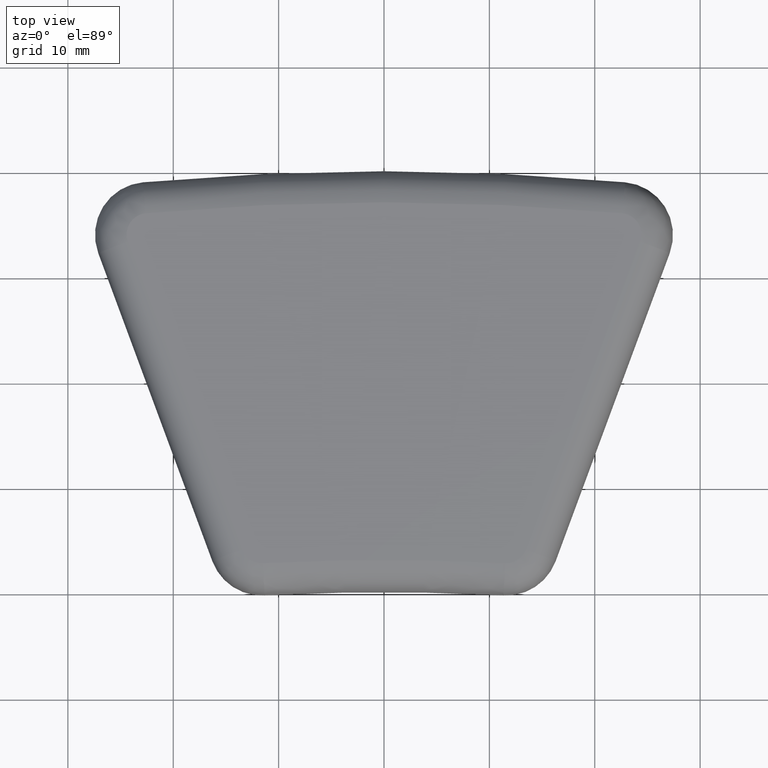
[diagram: clean part render]
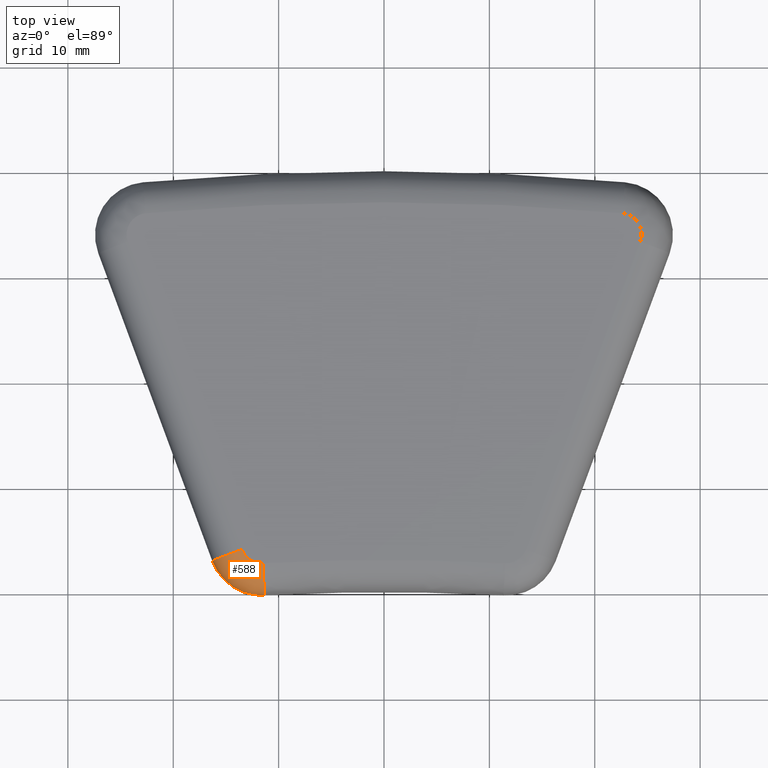
[diagram: same view with one face highlighted and labeled with its STEP entity id]
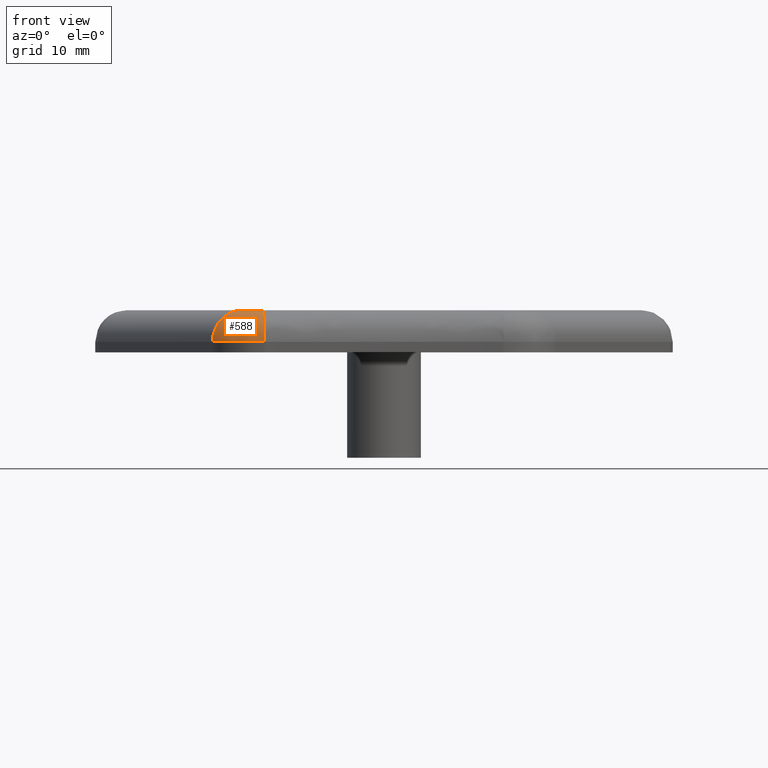
[diagram: same view with one face highlighted and labeled with its STEP entity id]
A machine part, top view. The second image highlights one B-rep face of the part: STEP entity #588.
A second angle (front view) of the same face is appended — the face is thin or edge-on in the first view.
In plain terms, the highlighted face is a freeform B-spline surface patch.
Its self-contained STEP definition (entity closure, byte-faithful):
#142=CARTESIAN_POINT('',(-13.477986189388506,-15.947281593540904,4.0));
#143=VERTEX_POINT('',#142);
#150=CARTESIAN_POINT('',(-11.494577919335303,-17.249770141834830,4.0));
#151=VERTEX_POINT('',#150);
#152=CARTESIAN_POINT('',(-11.602477570224877,-15.252682846462420,4.0));
#153=DIRECTION('',(0.0,0.0,-1.0));
#154=DIRECTION('',(0.053949825444788,-0.998543647686208,0.0));
#155=AXIS2_PLACEMENT_3D('',#152,#153,#154);
#156=CIRCLE('',#155,2.000000000000015);
#157=EDGE_CURVE('',#151,#143,#156,.T.);
#266=CARTESIAN_POINT('',(-16.291249118133926,-16.989179714158624,1.0));
#267=VERTEX_POINT('',#266);
#289=CARTESIAN_POINT('',(-11.332728443000917,-20.245401084893473,1.0));
#290=VERTEX_POINT('',#289);
#297=CARTESIAN_POINT('',(-11.602477570224877,-15.252682846462420,1.0));
#298=DIRECTION('',(0.0,0.0,-1.0));
#299=DIRECTION('',(0.053949825444788,-0.998543647686208,0.0));
#300=AXIS2_PLACEMENT_3D('',#297,#298,#299);
#301=CIRCLE('',#300,5.000000000000015);
#302=EDGE_CURVE('',#290,#267,#301,.T.);
#515=CARTESIAN_POINT('',(-11.494577919335306,-17.249770141834830,1.0));
#516=DIRECTION('',(-0.998543647686207,-0.053949825444795,0.0));
#517=DIRECTION('',(0.053949825444795,-0.998543647686207,0.0));
#518=AXIS2_PLACEMENT_3D('',#515,#516,#517);
#519=CIRCLE('',#518,3.000000000000021);
#520=EDGE_CURVE('',#290,#151,#519,.T.);
#526=CARTESIAN_POINT('',(-11.332728443000939,-20.245401084893473,1.0));
#527=CARTESIAN_POINT('',(-11.332728443000939,-20.245401084893473,1.390180644032256));
#528=CARTESIAN_POINT('',(-11.341150891664359,-20.089512116922148,2.179083452029824));
#529=CARTESIAN_POINT('',(-11.377170219487221,-19.422839505937457,3.176238734418842));
#530=CARTESIAN_POINT('',(-11.430966572913455,-18.427136432951166,3.843883671652662));
#531=CARTESIAN_POINT('',(-11.473527741697827,-17.639382545383373,4.0));
#532=CARTESIAN_POINT('',(-11.494577919335303,-17.249770141834851,4.0));
#533=CARTESIAN_POINT('',(-11.858941818837792,-20.273831609526919,1.0));
#534=CARTESIAN_POINT('',(-11.858941818837792,-20.273831609526919,1.390180644032256));
#535=CARTESIAN_POINT('',(-11.850934167468631,-20.117054947731830,2.179083452029824));
#536=CARTESIAN_POINT('',(-11.816688756035054,-19.446586037580264,3.176238734418841));
#537=CARTESIAN_POINT('',(-11.765541819985394,-18.445213035030104,3.843883671652662));
#538=CARTESIAN_POINT('',(-11.725076746809052,-17.652973363319084,4.000000000000000));
#539=CARTESIAN_POINT('',(-11.705063269670045,-17.261142351688225,4.0));
#540=CARTESIAN_POINT('',(-12.928058967340089,-20.161973362099733,1.0));
#541=CARTESIAN_POINT('',(-12.928058967340089,-20.161973362099733,1.390180644032256));
#542=CARTESIAN_POINT('',(-12.886669987211455,-20.008689280081395,2.179083452029826));
#543=CARTESIAN_POINT('',(-12.709666445476397,-19.353156688446354,3.176238734418840));
#544=CARTESIAN_POINT('',(-12.445304347002391,-18.374091694356338,3.843883671652662));
#545=CARTESIAN_POINT('',(-12.236153369719686,-17.599501079743924,4.000000000000000));
#546=CARTESIAN_POINT('',(-12.132710129070968,-17.216399052717364,4.0));
#547=CARTESIAN_POINT('',(-14.393379331441940,-19.502622426625805,1.000000000000000));
#548=CARTESIAN_POINT('',(-14.393379331441940,-19.502622426625805,1.390180644032256));
#549=CARTESIAN_POINT('',(-14.306238264294082,-19.369925434035174,2.179083452029826));
#550=CARTESIAN_POINT('',(-13.933571978055378,-18.802435305186027,3.176238734418841));
#551=CARTESIAN_POINT('',(-13.376979491290090,-17.954865364747224,3.843883671652663));
#552=CARTESIAN_POINT('',(-12.936629444036193,-17.284307511025041,3.999999999999999));
#553=CARTESIAN_POINT('',(-12.718838274711707,-16.952658678527772,3.999999999999999));
#554=CARTESIAN_POINT('',(-15.580730669893576,-18.419984802746473,1.000000000000000));
#555=CARTESIAN_POINT('',(-15.580730669893576,-18.419984802746473,1.390180644032257));
#556=CARTESIAN_POINT('',(-15.456516616462235,-18.321091292309998,2.179083452029825));
#557=CARTESIAN_POINT('',(-14.925304508256525,-17.898164669149246,3.176238734418841));
#558=CARTESIAN_POINT('',(-14.131917289653515,-17.266506293823298,3.843883671652663));
#559=CARTESIAN_POINT('',(-13.504226281402776,-16.766767612405555,4.000000000000001));
#560=CARTESIAN_POINT('',(-13.193778810092368,-16.519603628976050,4.000000000000001));
#561=CARTESIAN_POINT('',(-16.108229000586160,-17.483358273197108,1.0));
#562=CARTESIAN_POINT('',(-16.108229000586160,-17.483358273197108,1.390180644032256));
#563=CARTESIAN_POINT('',(-15.967544726635410,-17.413709301725820,2.179083452029824));
#564=CARTESIAN_POINT('',(-15.365896300452460,-17.115849470671559,3.176238734418841));
#565=CARTESIAN_POINT('',(-14.467309532469132,-16.670983513658783,3.843883671652663));
#566=CARTESIAN_POINT('',(-13.756389541358924,-16.319026292082352,4.0));
#567=CARTESIAN_POINT('',(-13.404778142369398,-16.144953017156297,4.0));
#568=CARTESIAN_POINT('',(-16.291249118133926,-16.989179714158624,1.0));
#569=CARTESIAN_POINT('',(-16.291249118133926,-16.989179714158624,1.390180644032256));
#570=CARTESIAN_POINT('',(-16.144850358430119,-16.934960611124346,2.179083452029824));
#571=CARTESIAN_POINT('',(-15.518763441268636,-16.703087942676397,3.176238734418842));
#572=CARTESIAN_POINT('',(-14.583676777886069,-16.356776537781347,3.843883671652662));
#573=CARTESIAN_POINT('',(-13.843879769845159,-16.082791086780443,4.0));
#574=CARTESIAN_POINT('',(-13.477986189388506,-15.947281593540904,4.0));
#575=B_SPLINE_SURFACE_WITH_KNOTS('',3,3,((#526,#533,#540,#547,#554,#561,#568),(#527,#534,#541,#548,#555,#562,#569),(#528,#535,#542,#549,#556,#563,#570),(#529,#536,#543,#550,#557,#564,#571),(#530,#537,#544,#551,#558,#565,#572),(#531,#538,#545,#552,#559,#566,#573),(#532,#539,#546,#553,#560,#567,#574)),.UNSPECIFIED.,.F.,.F.,.U.,(4,1,1,1,4),(4,1,1,1,4),(0.0,1.170541932096769,2.341083864193539,3.511625796290308,4.682167728387078),(0.0,1.204109657954587,2.408219315909174,3.612328973863761,4.816438631818349),.UNSPECIFIED.);
#576=ORIENTED_EDGE('',*,*,#520,.T.);
#577=ORIENTED_EDGE('',*,*,#157,.T.);
#578=CARTESIAN_POINT('',(-13.477986189388496,-15.947281593540907,1.0));
#579=DIRECTION('',(0.347299373539241,-0.937754309581807,0.0));
#580=DIRECTION('',(-0.937754309581807,-0.347299373539241,0.0));
#581=AXIS2_PLACEMENT_3D('',#578,#579,#580);
#582=CIRCLE('',#581,3.000000000000000);
#583=EDGE_CURVE('',#143,#267,#582,.T.);
#584=ORIENTED_EDGE('',*,*,#583,.T.);
#585=ORIENTED_EDGE('',*,*,#302,.F.);
#586=EDGE_LOOP('',(#576,#577,#584,#585));
#587=FACE_OUTER_BOUND('',#586,.T.);
#588=ADVANCED_FACE('',(#587),#575,.T.);